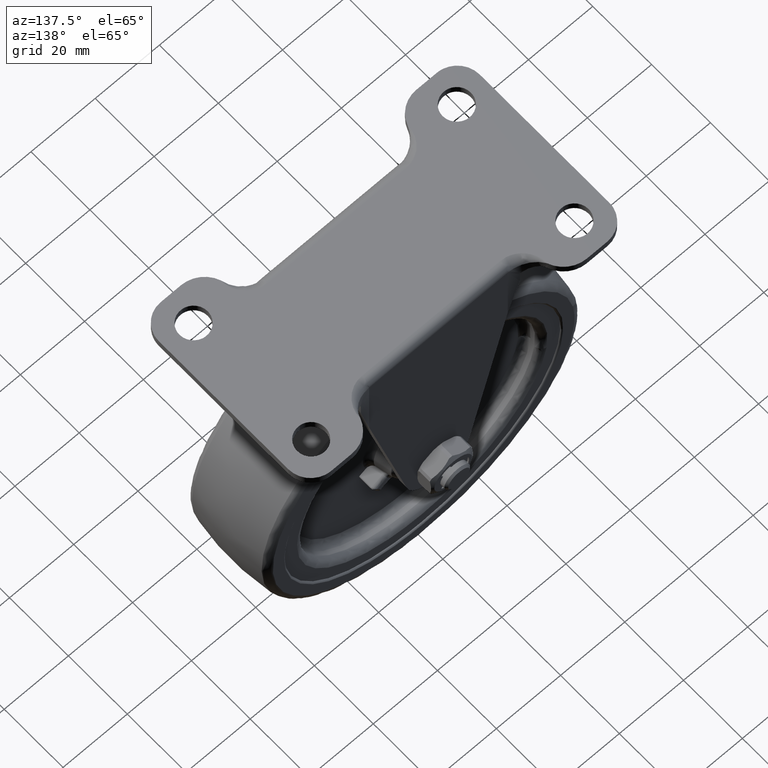
[diagram: clean part render]
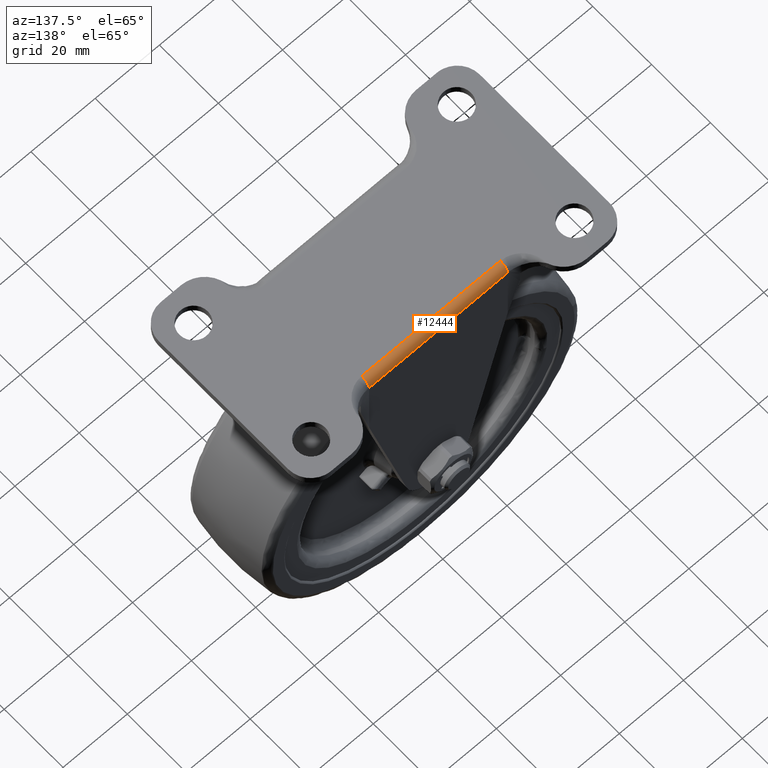
[diagram: same view with one face highlighted and labeled with its STEP entity id]
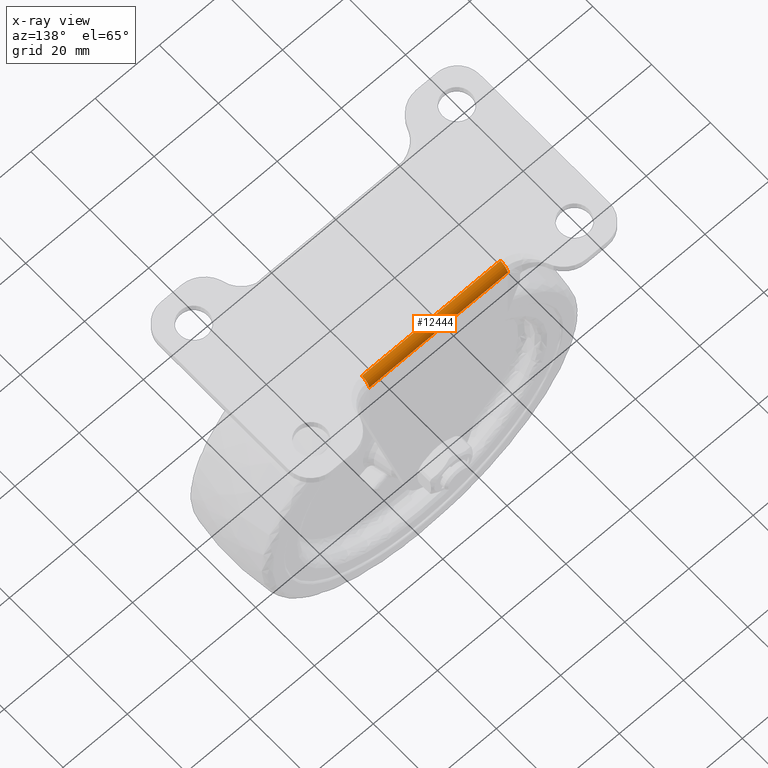
[diagram: x-ray of the same camera — body ghosted, the highlighted face saturated]
A machine part, auxiliary view. The second image highlights one B-rep face of the part: STEP entity #12444.
The next image is the same camera in x-ray: the body ghosted, the highlighted face saturated — about 0% of this face is hidden behind the body in this view.
In plain terms, the highlighted face is a freeform B-spline surface patch.
Its self-contained STEP definition (entity closure, byte-faithful):
#12339=CARTESIAN_POINT('',(-21.590023477556901,18.499980000000001,69.500000000000000));
#12340=VERTEX_POINT('',#12339);
#12370=CARTESIAN_POINT('',(-21.590023477556901,15.999980000000001,72.0));
#12371=VERTEX_POINT('',#12370);
#12384=CARTESIAN_POINT('',(-21.590023477556901,15.999979999999990,72.000000000000014));
#12385=CARTESIAN_POINT('',(-21.590023477556901,16.327229234748931,72.000000000000014));
#12386=CARTESIAN_POINT('',(-21.590023477556912,16.654349710898199,71.934931691670798));
#12387=CARTESIAN_POINT('',(-21.590023477556901,17.259027450927249,71.684465970885626));
#12388=CARTESIAN_POINT('',(-21.590023477556912,17.536346799937292,71.499167105995454));
#12389=CARTESIAN_POINT('',(-21.590023477556901,17.999147105995451,71.036366799937269));
#12390=CARTESIAN_POINT('',(-21.590023477556901,18.184445970885651,70.759047450927213));
#12391=CARTESIAN_POINT('',(-21.590023477556912,18.434911691670798,70.154369710898195));
#12392=CARTESIAN_POINT('',(-21.590023477556912,18.499980000000011,69.827249234748919));
#12393=CARTESIAN_POINT('',(-21.590023477556901,18.499980000000001,69.499999999999986));
#12394=B_SPLINE_CURVE_WITH_KNOTS('',3,(#12384,#12385,#12386,#12387,#12388,#12389,#12390,#12391,#12392,#12393),.UNSPECIFIED.,.F.,.U.,(4,2,2,2,4),(0.0,0.250000000000000,0.500000000000000,0.750000000000000,1.0),.UNSPECIFIED.);
#12395=EDGE_CURVE('',#12371,#12340,#12394,.T.);
#12400=CARTESIAN_POINT('',(-22.669524651434749,15.890931531586659,71.997620553954647));
#12401=CARTESIAN_POINT('',(22.696512180781600,15.890931531586659,71.997620553954647));
#12402=CARTESIAN_POINT('',(-22.669524651434735,18.690130662724108,72.119836227408825));
#12403=CARTESIAN_POINT('',(22.696512180781603,18.690130662724108,72.119836227408825));
#12404=CARTESIAN_POINT('',(-22.669524651434749,18.493837282981787,69.324854768495740));
#12405=CARTESIAN_POINT('',(22.696512180781603,18.493837282981787,69.324854768495740));
#12413=(BOUNDED_SURFACE()B_SPLINE_SURFACE(1,2,((#12400,#12402,#12404),(#12401,#12403,#12405)),.UNSPECIFIED.,.F.,.F.,.U.)B_SPLINE_SURFACE_WITH_KNOTS((2,2),(3,3),(0.0,45.366036832216352),(0.0,4.479356351285180),.UNSPECIFIED.)GEOMETRIC_REPRESENTATION_ITEM()RATIONAL_B_SPLINE_SURFACE(((1.0,0.664513898409564,0.996233561507358),(1.0,0.664513898409564,0.996233561507358)))REPRESENTATION_ITEM('')SURFACE());
#12414=CARTESIAN_POINT('',(21.590023477556802,15.999980000000001,72.0));
#12415=VERTEX_POINT('',#12414);
#12416=CARTESIAN_POINT('',(21.590023477556802,18.499980000000001,69.500000000000000));
#12417=VERTEX_POINT('',#12416);
#12418=CARTESIAN_POINT('',(21.590023477556802,15.999980000000001,72.0));
#12419=CARTESIAN_POINT('',(21.590023477555757,18.499980000000004,71.999999999999986));
#12420=CARTESIAN_POINT('',(21.590023477556802,18.499980000000001,69.500000000000000));
#12428=(BOUNDED_CURVE()B_SPLINE_CURVE(2,(#12418,#12419,#12420),.UNSPECIFIED.,.F.,.U.)CURVE()GEOMETRIC_REPRESENTATION_ITEM()QUASI_UNIFORM_CURVE()RATIONAL_B_SPLINE_CURVE((1.0,0.707106781186546,1.0))REPRESENTATION_ITEM(''));
#12429=EDGE_CURVE('',#12415,#12417,#12428,.T.);
#12430=ORIENTED_EDGE('',*,*,#12429,.T.);
#12431=CARTESIAN_POINT('',(-21.590023477556901,18.499980000000001,69.500000000000000));
#12432=CARTESIAN_POINT('',(21.590023477556802,18.499980000000001,69.500000000000000));
#12433=QUASI_UNIFORM_CURVE('',1,(#12431,#12432),.UNSPECIFIED.,.F.,.U.);
#12434=EDGE_CURVE('',#12340,#12417,#12433,.T.);
#12435=ORIENTED_EDGE('',*,*,#12434,.F.);
#12436=ORIENTED_EDGE('',*,*,#12395,.F.);
#12437=CARTESIAN_POINT('',(21.590023477556802,15.999980000000001,72.0));
#12438=CARTESIAN_POINT('',(-21.590023477556901,15.999980000000001,72.0));
#12439=QUASI_UNIFORM_CURVE('',1,(#12437,#12438),.UNSPECIFIED.,.F.,.U.);
#12440=EDGE_CURVE('',#12415,#12371,#12439,.T.);
#12441=ORIENTED_EDGE('',*,*,#12440,.F.);
#12442=EDGE_LOOP('',(#12430,#12435,#12436,#12441));
#12443=FACE_OUTER_BOUND('',#12442,.T.);
#12444=ADVANCED_FACE('',(#12443),#12413,.T.);